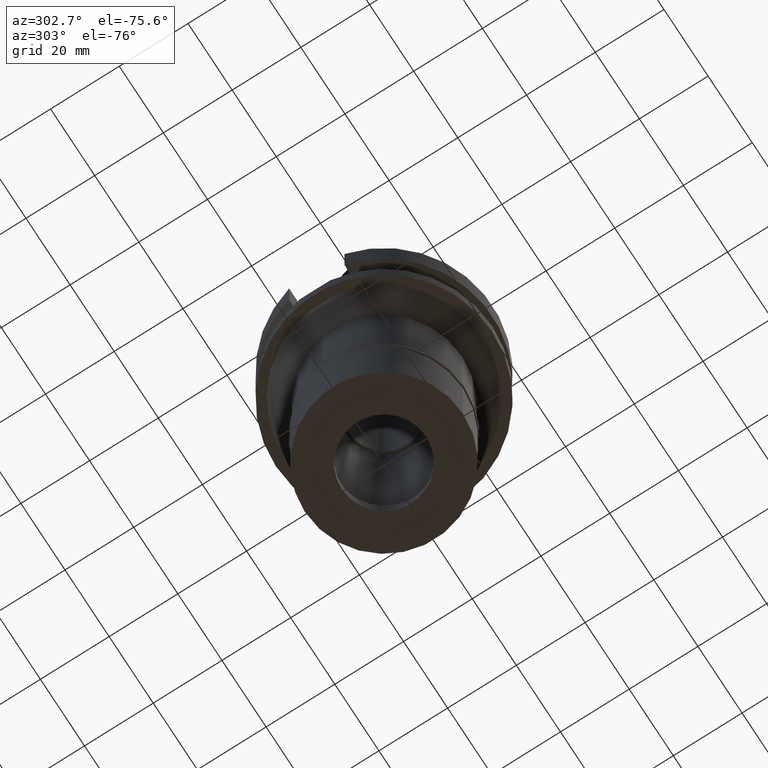
[diagram: clean part render]
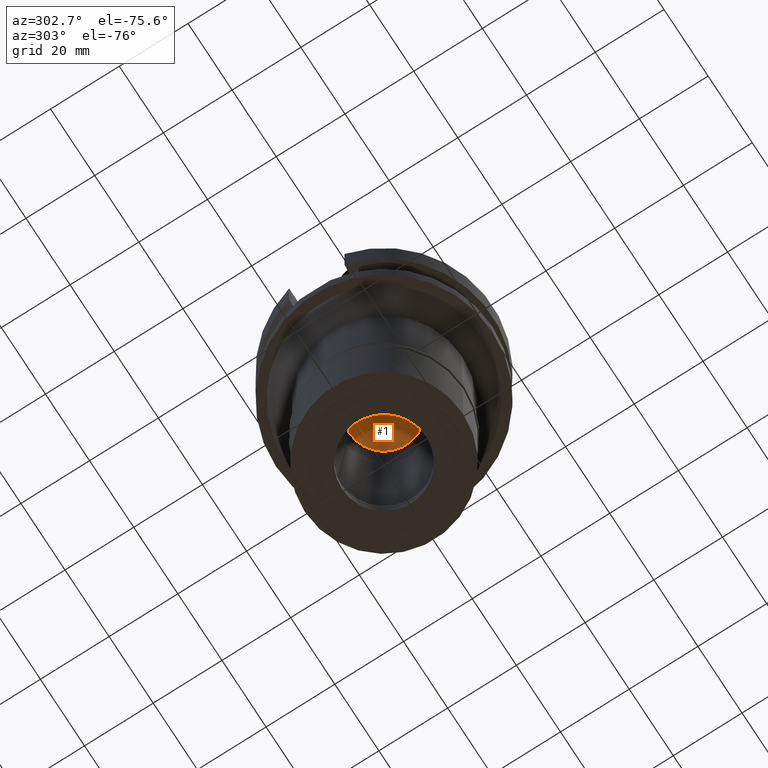
[diagram: same view with one face highlighted and labeled with its STEP entity id]
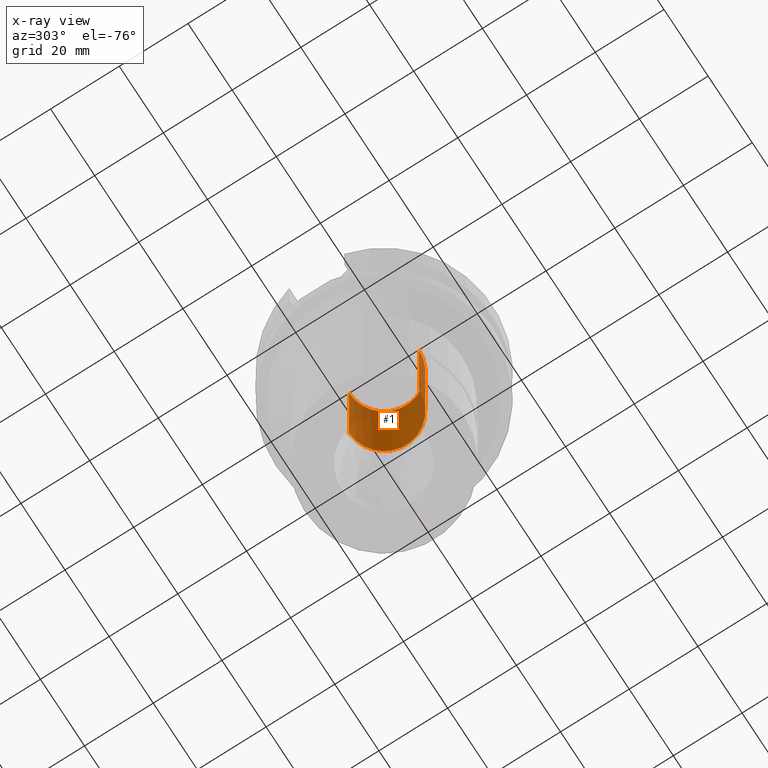
[diagram: x-ray of the same camera — body ghosted, the highlighted face saturated]
A machine part, auxiliary view. The second image highlights one B-rep face of the part: STEP entity #1.
The next image is the same camera in x-ray: the body ghosted, the highlighted face saturated — about 42% of this face is hidden behind the body in this view.
In plain terms, the highlighted cylindrical surface (partial cylindrical patch) has radius 10.15 mm, axis along (0, 0, -1).
Its self-contained STEP definition (entity closure, byte-faithful):
#1 = ADVANCED_FACE ( 'NONE', ( #437 ), #2623, .F. ) ;
#70 = CARTESIAN_POINT ( 'NONE',  ( 8.116618450341546165, 6.237649207745366020, 0.0000000000000000000 ) ) ;
#112 = CARTESIAN_POINT ( 'NONE',  ( 2.656741026246655757, -9.885822668183413597, -0.0000000000000000000 ) ) ;
#294 = VERTEX_POINT ( 'NONE', #2024 ) ;
#311 = CARTESIAN_POINT ( 'NONE',  ( 10.15000000000000391, 1.328631893080649551, -0.0000000000000000000 ) ) ;
#428 = CARTESIAN_POINT ( 'NONE',  ( 0.0000000000000000000, 10.14999999999999858, -39.00000000000000000 ) ) ;
#437 = FACE_OUTER_BOUND ( 'NONE', #2233, .T. ) ;
#453 = DIRECTION ( 'NONE',  ( 0.0000000000000000000, 1.000000000000000000, 0.0000000000000000000 ) ) ;
#546 = CARTESIAN_POINT ( 'NONE',  ( 5.111732650764595043, -8.868931841795735238, -0.0000000000000000000 ) ) ;
#575 = CARTESIAN_POINT ( 'NONE',  ( 8.116618450341501756, -6.237649207745419311, -0.0000000000000000000 ) ) ;
#593 = CARTESIAN_POINT ( 'NONE',  ( 0.0000000000000000000, -10.15249999999999986, 0.0000000000000000000 ) ) ;
#693 = VERTEX_POINT ( 'NONE', #2605 ) ;
#775 = CARTESIAN_POINT ( 'NONE',  ( 2.656741026246713488, 9.885822668183397610, -0.0000000000000000000 ) ) ;
#804 = CARTESIAN_POINT ( 'NONE',  ( 1.328631893080705506, 10.14999999999999503, -0.0000000000000000000 ) ) ;
#855 = CARTESIAN_POINT ( 'NONE',  ( 0.0000000000000000000, -10.14999999999999858, -13.00000000000000888 ) ) ;
#966 = B_SPLINE_CURVE_WITH_KNOTS ( 'NONE', 3,
 ( #1389, #1830, #855, #2998 ),
 .UNSPECIFIED., .F., .F.,
 ( 4, 4 ),
 ( 0.0000000000000000000, 1.000000000000000000 ),
 .UNSPECIFIED. ) ;
#1013 = CARTESIAN_POINT ( 'NONE',  ( 9.885822668183392281, -2.656741026246730808, -0.0000000000000000000 ) ) ;
#1029 = EDGE_CURVE ( 'NONE', #294, #1680, #2100, .T. ) ;
#1040 = ORIENTED_EDGE ( 'NONE', *, *, #2466, .T. ) ;
#1056 = ORIENTED_EDGE ( 'NONE', *, *, #1029, .F. ) ;
#1070 = CARTESIAN_POINT ( 'NONE',  ( 9.885822668183411821, 2.656741026246664195, 0.0000000000000000000 ) ) ;
#1204 = DIRECTION ( 'NONE',  ( 0.0000000000000000000, 0.0000000000000000000, -1.000000000000000000 ) ) ;
#1211 = CIRCLE ( 'NONE', #2854, 10.14999999999999858 ) ;
#1278 = B_SPLINE_CURVE_WITH_KNOTS ( 'NONE', 3,
 ( #593, #2197, #112, #546, #1546, #575, #2940, #1013, #1766, #311, #1070, #2896, #70, #2016, #2214, #775, #804, #1721 ),
 .UNSPECIFIED., .F., .F.,
 ( 4, 2, 2, 2, 2, 2, 2, 2, 4 ),
 ( 0.0000000000000000000, 0.1250000000000000000, 0.2500000000000000000, 0.3750000000000000000, 0.5000000000000000000, 0.6250000000000000000, 0.7500000000000000000, 0.8750000000000000000, 1.000000000000000000 ),
 .UNSPECIFIED. ) ;
#1375 = CARTESIAN_POINT ( 'NONE',  ( 2.129451089875611349E-14, 10.14999999999999858, -13.00000000000000888 ) ) ;
#1389 = CARTESIAN_POINT ( 'NONE',  ( 0.0000000000000000000, -10.14999999999999858, -39.00000000000000000 ) ) ;
#1392 = CARTESIAN_POINT ( 'NONE',  ( 2.129451089875611349E-14, 10.14999999999999858, -26.00000000000000711 ) ) ;
#1403 = DIRECTION ( 'NONE',  ( 0.0000000000000000000, 0.0000000000000000000, -1.000000000000000000 ) ) ;
#1495 = EDGE_CURVE ( 'NONE', #294, #1906, #1211, .T. ) ;
#1546 = CARTESIAN_POINT ( 'NONE',  ( 6.237649207745351809, -8.116618450341556823, 0.0000000000000000000 ) ) ;
#1680 = VERTEX_POINT ( 'NONE', #1822 ) ;
#1721 = CARTESIAN_POINT ( 'NONE',  ( 0.0000000000000000000, 10.15249999999999986, 0.0000000000000000000 ) ) ;
#1766 = CARTESIAN_POINT ( 'NONE',  ( 10.14999999999999503, -1.328631893080718163, 0.0000000000000000000 ) ) ;
#1822 = CARTESIAN_POINT ( 'NONE',  ( 0.0000000000000000000, 10.15249999999999986, 0.0000000000000000000 ) ) ;
#1830 = CARTESIAN_POINT ( 'NONE',  ( 0.0000000000000000000, -10.14999999999999858, -26.00000000000000711 ) ) ;
#1884 = CARTESIAN_POINT ( 'NONE',  ( 0.0000000000000000000, 10.15249999999999986, 0.0000000000000000000 ) ) ;
#1906 = VERTEX_POINT ( 'NONE', #3008 ) ;
#2016 = CARTESIAN_POINT ( 'NONE',  ( 6.237649207745405988, 8.116618450341512414, -0.0000000000000000000 ) ) ;
#2024 = CARTESIAN_POINT ( 'NONE',  ( 0.0000000000000000000, 10.14999999999999858, -39.00000000000000000 ) ) ;
#2100 = B_SPLINE_CURVE_WITH_KNOTS ( 'NONE', 3,
 ( #428, #1392, #1375, #1884 ),
 .UNSPECIFIED., .F., .F.,
 ( 4, 4 ),
 ( 0.0000000000000000000, 1.000000000000000000 ),
 .UNSPECIFIED. ) ;
#2197 = CARTESIAN_POINT ( 'NONE',  ( 1.328631893080642223, -10.15000000000000568, 0.0000000000000000000 ) ) ;
#2214 = CARTESIAN_POINT ( 'NONE',  ( 5.111732650764647445, 8.868931841795706816, 0.0000000000000000000 ) ) ;
#2233 = EDGE_LOOP ( 'NONE', ( #2768, #1040, #2275, #1056 ) ) ;
#2237 = AXIS2_PLACEMENT_3D ( 'NONE', #2869, #1204, #2568 ) ;
#2275 = ORIENTED_EDGE ( 'NONE', *, *, #2813, .T. ) ;
#2466 = EDGE_CURVE ( 'NONE', #1906, #693, #966, .T. ) ;
#2568 = DIRECTION ( 'NONE',  ( 0.0000000000000000000, -1.000000000000000000, 0.0000000000000000000 ) ) ;
#2581 = CARTESIAN_POINT ( 'NONE',  ( 0.0000000000000000000, 0.0000000000000000000, -39.00000000000000000 ) ) ;
#2605 = CARTESIAN_POINT ( 'NONE',  ( 0.0000000000000000000, -10.15249999999999986, 0.0000000000000000000 ) ) ;
#2623 = CYLINDRICAL_SURFACE ( 'NONE', #2237, 10.14999999999999858 ) ;
#2768 = ORIENTED_EDGE ( 'NONE', *, *, #1495, .T. ) ;
#2813 = EDGE_CURVE ( 'NONE', #693, #1680, #1278, .T. ) ;
#2854 = AXIS2_PLACEMENT_3D ( 'NONE', #2581, #1403, #453 ) ;
#2869 = CARTESIAN_POINT ( 'NONE',  ( 0.0000000000000000000, 0.0000000000000000000, 0.0000000000000000000 ) ) ;
#2896 = CARTESIAN_POINT ( 'NONE',  ( 8.868931841795731685, 5.111732650764603925, -0.0000000000000000000 ) ) ;
#2940 = CARTESIAN_POINT ( 'NONE',  ( 8.868931841795697935, -5.111732650764665209, 0.0000000000000000000 ) ) ;
#2998 = CARTESIAN_POINT ( 'NONE',  ( 0.0000000000000000000, -10.15249999999999986, 0.0000000000000000000 ) ) ;
#3008 = CARTESIAN_POINT ( 'NONE',  ( 0.0000000000000000000, -10.14999999999999858, -39.00000000000000000 ) ) ;